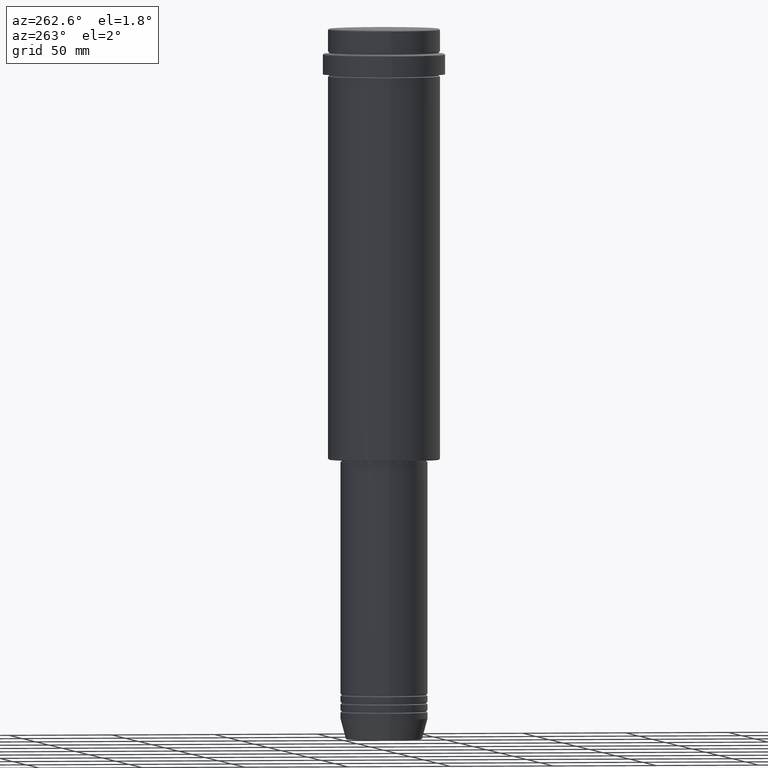
[diagram: clean part render]
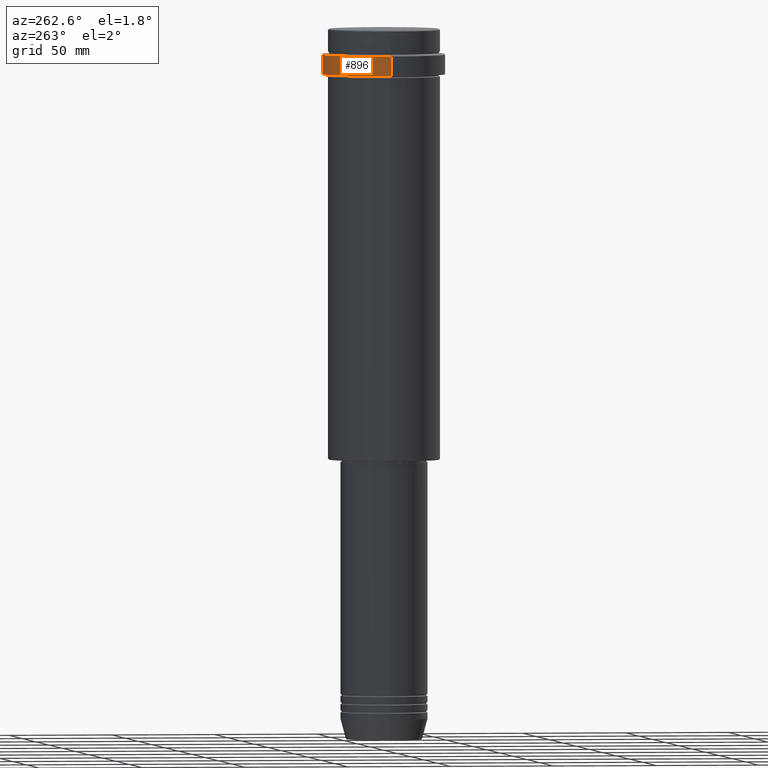
[diagram: same view with one face highlighted and labeled with its STEP entity id]
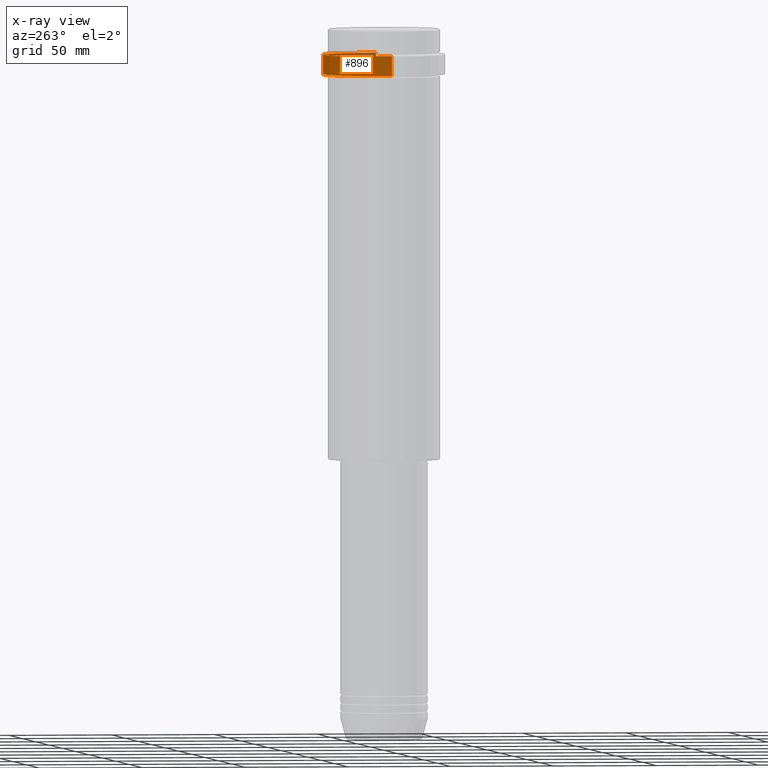
[diagram: x-ray of the same camera — body ghosted, the highlighted face saturated]
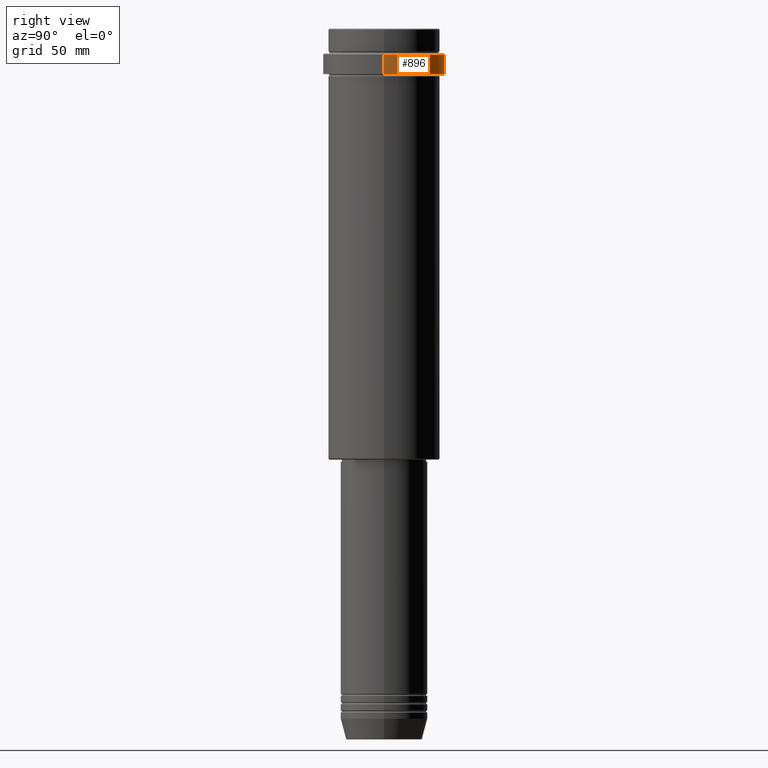
[diagram: same view with one face highlighted and labeled with its STEP entity id]
A machine part, auxiliary view. The second image highlights one B-rep face of the part: STEP entity #896.
The next image is the same camera in x-ray: the body ghosted, the highlighted face saturated — about 8% of this face is hidden behind the body in this view.
A second angle (right view) of the same face is appended — the face is thin or edge-on in the first view.
In plain terms, the highlighted cylindrical surface (partial cylindrical patch) has radius 29.5 mm, axis along (-0, -0, 1).
Its self-contained STEP definition (entity closure, byte-faithful):
#82 = AXIS2_PLACEMENT_3D ( 'NONE', #1038, #1334, #371 ) ;
#149 = VERTEX_POINT ( 'NONE', #450 ) ;
#206 = EDGE_LOOP ( 'NONE', ( #923, #976, #947, #702 ) ) ;
#236 = VECTOR ( 'NONE', #996, 1000.000000000000000 ) ;
#261 = CARTESIAN_POINT ( 'NONE',  ( -29.50000000000000000, 3.612708057484691604E-15, 0.000000000000000000 ) ) ;
#371 = DIRECTION ( 'NONE',  ( 1.000000000000000000, 0.000000000000000000, 0.000000000000000000 ) ) ;
#450 = CARTESIAN_POINT ( 'NONE',  ( -29.50000000000000000, 3.612708057484691604E-15, -12.50000000000000355 ) ) ;
#453 = CIRCLE ( 'NONE', #1029, 29.49999999999999645 ) ;
#479 = CARTESIAN_POINT ( 'NONE',  ( 29.50000000000000000, 0.000000000000000000, -12.50000000000000355 ) ) ;
#495 = FACE_OUTER_BOUND ( 'NONE', #206, .T. ) ;
#596 = DIRECTION ( 'NONE',  ( -0.000000000000000000, -0.000000000000000000, 1.000000000000000000 ) ) ;
#681 = CARTESIAN_POINT ( 'NONE',  ( 0.000000000000000000, 0.000000000000000000, -22.00000000000000711 ) ) ;
#696 = DIRECTION ( 'NONE',  ( -0.000000000000000000, -0.000000000000000000, 1.000000000000000000 ) ) ;
#702 = ORIENTED_EDGE ( 'NONE', *, *, #1059, .F. ) ;
#706 = CYLINDRICAL_SURFACE ( 'NONE', #1340, 29.50000000000000000 ) ;
#751 = EDGE_CURVE ( 'NONE', #838, #759, #453, .T. ) ;
#759 = VERTEX_POINT ( 'NONE', #788 ) ;
#770 = CARTESIAN_POINT ( 'NONE',  ( 29.50000000000000000, 0.000000000000000000, 0.000000000000000000 ) ) ;
#788 = CARTESIAN_POINT ( 'NONE',  ( -29.49999999999999645, 3.612708057484690815E-15, -22.00000000000000711 ) ) ;
#806 = CARTESIAN_POINT ( 'NONE',  ( 29.49999999999999645, 0.000000000000000000, -22.00000000000000711 ) ) ;
#814 = EDGE_CURVE ( 'NONE', #759, #149, #916, .T. ) ;
#838 = VERTEX_POINT ( 'NONE', #806 ) ;
#867 = LINE ( 'NONE', #770, #236 ) ;
#896 = ADVANCED_FACE ( 'NONE', ( #495 ), #706, .T. ) ;
#916 = LINE ( 'NONE', #261, #1057 ) ;
#919 = CARTESIAN_POINT ( 'NONE',  ( 0.000000000000000000, 0.000000000000000000, 0.000000000000000000 ) ) ;
#923 = ORIENTED_EDGE ( 'NONE', *, *, #751, .T. ) ;
#947 = ORIENTED_EDGE ( 'NONE', *, *, #960, .T. ) ;
#960 = EDGE_CURVE ( 'NONE', #149, #1272, #1167, .T. ) ;
#976 = ORIENTED_EDGE ( 'NONE', *, *, #814, .T. ) ;
#996 = DIRECTION ( 'NONE',  ( -0.000000000000000000, -0.000000000000000000, 1.000000000000000000 ) ) ;
#1029 = AXIS2_PLACEMENT_3D ( 'NONE', #681, #696, #1125 ) ;
#1038 = CARTESIAN_POINT ( 'NONE',  ( 0.000000000000000000, 0.000000000000000000, -12.50000000000000355 ) ) ;
#1057 = VECTOR ( 'NONE', #1130, 1000.000000000000000 ) ;
#1059 = EDGE_CURVE ( 'NONE', #838, #1272, #867, .T. ) ;
#1125 = DIRECTION ( 'NONE',  ( 1.000000000000000000, 0.000000000000000000, 0.000000000000000000 ) ) ;
#1130 = DIRECTION ( 'NONE',  ( -0.000000000000000000, -0.000000000000000000, 1.000000000000000000 ) ) ;
#1167 = CIRCLE ( 'NONE', #82, 29.50000000000000000 ) ;
#1272 = VERTEX_POINT ( 'NONE', #479 ) ;
#1334 = DIRECTION ( 'NONE',  ( 0.000000000000000000, 0.000000000000000000, -1.000000000000000000 ) ) ;
#1340 = AXIS2_PLACEMENT_3D ( 'NONE', #919, #596, #1353 ) ;
#1353 = DIRECTION ( 'NONE',  ( 1.000000000000000000, 0.000000000000000000, 0.000000000000000000 ) ) ;